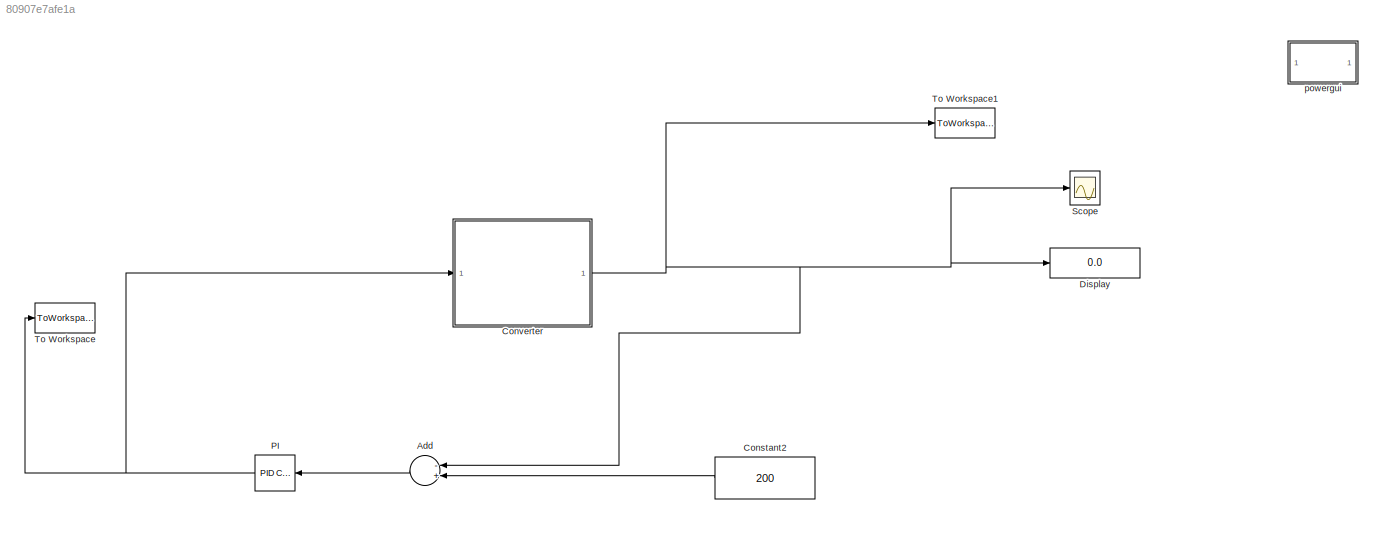
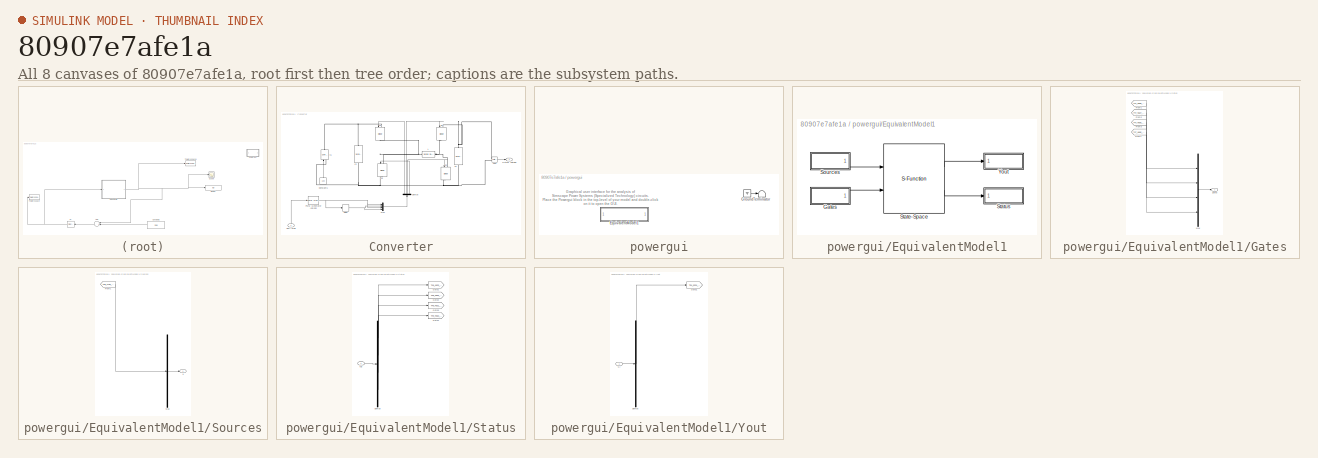
[diagram: thumbnail index - all 8 canvases of the model, root first then tree order]
MODEL slx_80907e7afe1a
KIND model
CONFIG AbsTol = auto
CONFIG FixedStep = auto
CONFIG MaxStep = auto
CONFIG MinStep = auto
CONFIG RelTol = 1e-3
CONFIG SampleTimeConstraint = Unconstrained
CONFIG Solver = VariableStepAuto
CONFIG SolverMode = Auto
CONFIG SolverName = VariableStepAuto
CONFIG StartTime = 0.0
CONFIG StopTime = 20
BLOCK [Sum] Add
  InputSameDT = off
  Inputs = -+
  OutDataTypeStr = Inherit: Inherit via internal rule
  Ports = [2, 1]
  SaturateOnIntegerOverflow = off
BLOCK [Constant] Constant2
  Value = 200
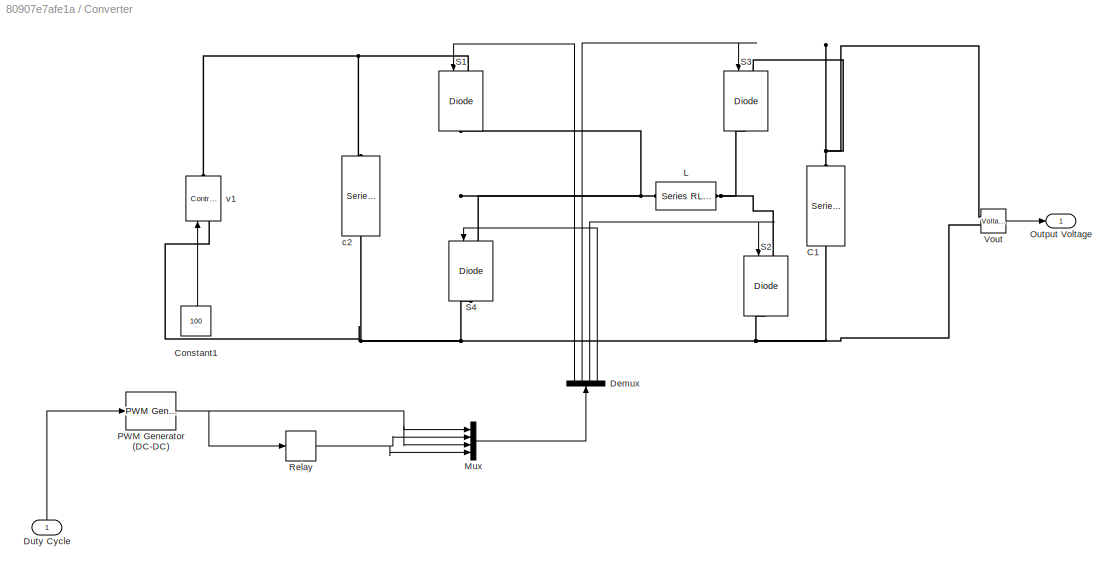
BLOCK [SubSystem] Converter
  Ports = [1, 1]
  RequestExecContextInheritance = off
  Variant = off
BLOCK [Reference] Converter/C1   REF=powerlib/Elements/Series RLC Branch
  Ports = [0, 0, 0, 0, 0, 1, 1]
  SourceBlock = powerlib/Elements/Series RLC Branch
  SourceType = Series RLC Branch
BLOCK [Constant] Converter/Constant1
  Value = 100
BLOCK [Demux] Converter/Demux
  DisplayOption = bar
  Ports = [1, 4]
BLOCK [Inport] Converter/Duty Cycle
  IconDisplay = Port number
BLOCK [Reference] Converter/L   REF=powerlib/Elements/Series RLC Branch
  Ports = [0, 0, 0, 0, 0, 1, 1]
  SourceBlock = powerlib/Elements/Series RLC Branch
  SourceType = Series RLC Branch
BLOCK [Mux] Converter/Mux
  DisplayOption = bar
  Ports = [4, 1]
BLOCK [Outport] Converter/Output Voltage
  IconDisplay = Port number
BLOCK [Reference] Converter/PWM Generator (DC-DC)  REF=powerlib_meascontrol/Pulse & Signal
Generators/PWM Generator
(DC-DC)
  Ports = [1, 1]
  SourceBlock = powerlib_meascontrol/Pulse & Signal\nGenerators/PWM Generator\n(DC-DC)
  SourceType = PWM Generator (DC-DC)
BLOCK [Relay] Converter/Relay
  InputProcessing = Elements as channels (sample based)
  OffOutputValue = 1
  OnOutputValue = 0
BLOCK [Reference] Converter/S1  REF=powerlib/Power
Electronics/IGBT//Diode
  Ports = [1, 0, 0, 0, 0, 1, 1]
  SourceBlock = powerlib/Power\nElectronics/IGBT//Diode
  SourceType = IGBT/Diode
BLOCK [Reference] Converter/S2  REF=powerlib/Power
Electronics/IGBT//Diode
  Ports = [1, 0, 0, 0, 0, 1, 1]
  SourceBlock = powerlib/Power\nElectronics/IGBT//Diode
  SourceType = IGBT/Diode
BLOCK [Reference] Converter/S3  REF=powerlib/Power
Electronics/IGBT//Diode
  Ports = [1, 0, 0, 0, 0, 1, 1]
  SourceBlock = powerlib/Power\nElectronics/IGBT//Diode
  SourceType = IGBT/Diode
BLOCK [Reference] Converter/S4  REF=powerlib/Power
Electronics/IGBT//Diode
  Ports = [1, 0, 0, 0, 0, 1, 1]
  SourceBlock = powerlib/Power\nElectronics/IGBT//Diode
  SourceType = IGBT/Diode
BLOCK [Reference] Converter/Vout  REF=powerlib/Measurements/Voltage Measurement
  Ports = [0, 1, 0, 0, 0, 2]
  SourceBlock = powerlib/Measurements/Voltage Measurement
  SourceType = Voltage Measurement
  UserDataPersistent = on
BLOCK [Reference] Converter/c2   REF=powerlib/Elements/Series RLC Branch
  Ports = [0, 0, 0, 0, 0, 1, 1]
  SourceBlock = powerlib/Elements/Series RLC Branch
  SourceType = Series RLC Branch
BLOCK [Reference] Converter/v1   REF=powerlib/Electrical
Sources/Controlled Voltage Source
  Ports = [1, 0, 0, 0, 0, 1, 1]
  SourceBlock = powerlib/Electrical\nSources/Controlled Voltage Source
  SourceType = Controlled Voltage Source
BLOCK [Display] Display
  Decimation = 1
  Ports = [1]
BLOCK [Reference] PI  REF=simulink/Continuous/PID Controller
  Ports = [1, 1]
  SourceBlock = simulink/Continuous/PID Controller
  SourceType = PID 1dof
BLOCK [Scope] Scope
  Ports = [1]
  ScopeSpecificationString = Simulink.scopes.TimeScopeBlockCfg('CurrentConfiguration', extmgr.ConfigurationSet(extmgr.Configuration('Core','General UI',true),extmgr.Configuration('Core','Source UI',true),extmgr.Configuration('Sources','WiredSimulink',true),extmgr.Configuration('Visuals','Time Domain',true,'SerializedDisplays',{struct('MinYLimReal','-26.25285','MaxYLimReal','236.27569','YLabelReal','','MinYLimMag','0.00000','M...<+1465ch>
BLOCK [ToWorkspace] To Workspace
  FixptAsFi = on
  MaxDataPoints = inf
  Ports = [1]
  SampleTime = -1
  Save2DSignal = 3-D array (concatenate along third dimension)
  SaveFormat = Timeseries
  VariableName = input
BLOCK [ToWorkspace] To Workspace1
  FixptAsFi = on
  MaxDataPoints = inf
  Ports = [1]
  SampleTime = -1
  Save2DSignal = 3-D array (concatenate along third dimension)
  SaveFormat = Timeseries
  VariableName = output
BLOCK [SubSystem] powergui
  AncestorBlock = powerlib/powergui
  CopyFcn = powergui( 'Copy_Callback' , gcb , 0 , [ ] );
  DeleteFcn = % see geck 675031 powergui( 'Copy_Callback' , gcb , 1 , [ ] );\n                                                              \npowergui( 'CloseButton_Callback' , gcb , [ ] , [ ] );
  InitFcn = powergui( 'InitFcn_Callback' , gcb , 0 , [ ] );
  ModelCloseFcn = powergui( 'CloseButton_Callback' , gcb , [ ] , [ ] );
  NameChangeFcn = powergui( 'NameChangeFcn_Callback' , gcb , 0 , [ ] );
  Ports = []
  PreSaveFcn = powergui( 'PreSaveFcn_Callback' , gcb , [ ] , [ ] ); \npowergui( 'CloseButton_Callback' , gcb , [ ] , [ ] );
  Priority = 1
  RequestExecContextInheritance = off
  StopFcn = powergui( 'StopFcn_Callback' , gcb , 0 , [ ] );
  UserDataPersistent = on
  Variant = off
BLOCK [SubSystem] powergui/EquivalentModel1
  Ports = []
  RequestExecContextInheritance = off
  Variant = off
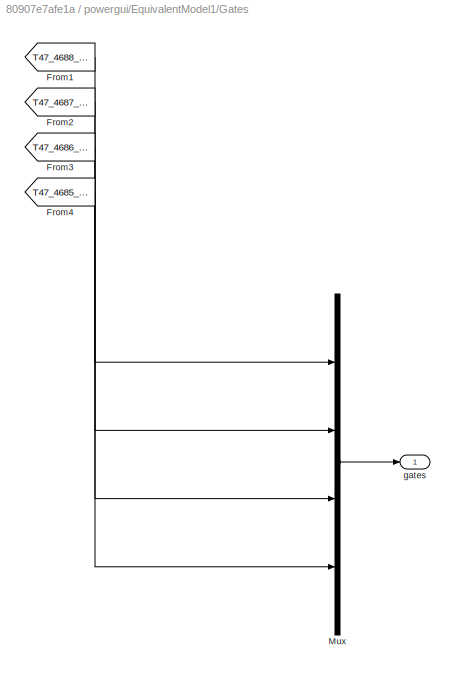
BLOCK [SubSystem] powergui/EquivalentModel1/Gates
  Ports = [0, 1]
  RequestExecContextInheritance = off
  Variant = off
BLOCK [From] powergui/EquivalentModel1/Gates/From1
  GotoTag = T47_4688_3280308392979
  TagVisibility = global
BLOCK [From] powergui/EquivalentModel1/Gates/From2
  GotoTag = T47_4687_3280777306883
  TagVisibility = global
BLOCK [From] powergui/EquivalentModel1/Gates/From3
  GotoTag = T47_4686_3281371688446
  TagVisibility = global
BLOCK [From] powergui/EquivalentModel1/Gates/From4
  GotoTag = T47_4685_3282091537669
  TagVisibility = global
BLOCK [Mux] powergui/EquivalentModel1/Gates/Mux
  DisplayOption = bar
  Inputs = [1 1 1 1]
  Ports = [4, 1]
BLOCK [Outport] powergui/EquivalentModel1/Gates/gates
  IconDisplay = Port number
BLOCK [SubSystem] powergui/EquivalentModel1/Sources
  Ports = [0, 1]
  RequestExecContextInheritance = off
  Variant = off
BLOCK [From] powergui/EquivalentModel1/Sources/From1
  GotoTag = T48_4730_3597010144357
  TagVisibility = global
BLOCK [Mux] powergui/EquivalentModel1/Sources/Mux
  DisplayOption = bar
  Inputs = 1
  Ports = [1, 1]
BLOCK [Outport] powergui/EquivalentModel1/Sources/u
  IconDisplay = Port number
BLOCK [S-Function] powergui/EquivalentModel1/State-Space
  EnableBusSupport = off
  FunctionName = sfun_spid_contc
  Parameters = S.Mg, [S.nb.x S.nb.u S.nb.y S.nb.s], S.x0, S.MgColNames, S.SwitchVf, S.SwitchType, S.SwitchGateInitialValue, S.SwitchTolerance,S.SaveMatrices,S.BufferSize
  Ports = [2, 2]
  SFunctionDeploymentMode = off
BLOCK [SubSystem] powergui/EquivalentModel1/Status
  Ports = [1]
  RequestExecContextInheritance = off
  Variant = off
BLOCK [Demux] powergui/EquivalentModel1/Status/Demux
  DisplayOption = bar
  Outputs = [2 2 2 2]
  Ports = [1, 4]
BLOCK [Goto] powergui/EquivalentModel1/Status/Goto1
  GotoTag = T49_4923_3850870581667
  TagVisibility = global
BLOCK [Goto] powergui/EquivalentModel1/Status/Goto2
  GotoTag = T49_4922_3851722306718
  TagVisibility = global
BLOCK [Goto] powergui/EquivalentModel1/Status/Goto3
  GotoTag = T49_4921_3852694378299
  TagVisibility = global
BLOCK [Goto] powergui/EquivalentModel1/Status/Goto4
  GotoTag = T49_4920_3853786796412
  TagVisibility = global
BLOCK [Inport] powergui/EquivalentModel1/Status/v&i
  IconDisplay = Port number
BLOCK [SubSystem] powergui/EquivalentModel1/Yout
  Ports = [1]
  RequestExecContextInheritance = off
  Variant = off
BLOCK [Demux] powergui/EquivalentModel1/Yout/Demux
  DisplayOption = bar
  Outputs = 1
  Ports = [1, 1]
BLOCK [Goto] powergui/EquivalentModel1/Yout/Goto1
  GotoTag = T51_5231_4485713002518
  TagVisibility = global
BLOCK [Inport] powergui/EquivalentModel1/Yout/v,i
  IconDisplay = Port number
BLOCK [Ground] powergui/Ground
BLOCK [Terminator] powergui/Terminator
ANNOTATION powergui: Graphical user interface for the analysis of Simscape Power Systems (Specialized Technology) circuits. Place the Powergui block in the top-level of your model and double-click on it to open the GUI.
LINE Add:1 -> PI:1
LINE Constant2:1 -> Add:2
LINE Converter/Constant1:1 -> Converter/v1 :1
LINE Converter/Demux:1 -> Converter/S1:1
LINE Converter/Demux:2 -> Converter/S3:1
LINE Converter/Demux:3 -> Converter/S2:1
LINE Converter/Demux:4 -> Converter/S4:1
LINE Converter/Duty Cycle:1 -> Converter/PWM Generator (DC-DC):1
LINE Converter/Mux:1 -> Converter/Demux:1
NET Converter/PWM Generator (DC-DC):1 -> Converter/Mux:1, Converter/Mux:3, Converter/Relay:1
NET Converter/Relay:1 -> Converter/Mux:2, Converter/Mux:4
LINE Converter/Vout:1 -> Converter/Output Voltage:1
NET Converter:1 -> Add:1, Display:1, Scope:1, To Workspace1:1
NET PI:1 -> Converter:1, To Workspace:1
PNET net1: Converter/C1 :LConn1 -- Converter/S3:LConn1 -- Converter/Vout:LConn1
PNET net2: Converter/C1 :RConn1 -- Converter/S2:RConn1 -- Converter/S4:RConn1 -- Converter/Vout:LConn2 -- Converter/c2 :RConn1 -- Converter/v1 :LConn1
PNET net3: Converter/L :LConn1 -- Converter/S2:LConn1 -- Converter/S3:RConn1
PNET net4: Converter/L :RConn1 -- Converter/S1:RConn1 -- Converter/S4:LConn1
PNET net5: Converter/S1:LConn1 -- Converter/c2 :LConn1 -- Converter/v1 :RConn1
note: NET lines group one-source signal fan-out (src -> all destinations, sorted); 1:1 wires keep LINE; PNET lines group multi-terminal physical nets as a canonical sorted terminal list (undirected conserving connections); 2-terminal nets keep the pairwise PLINE form
